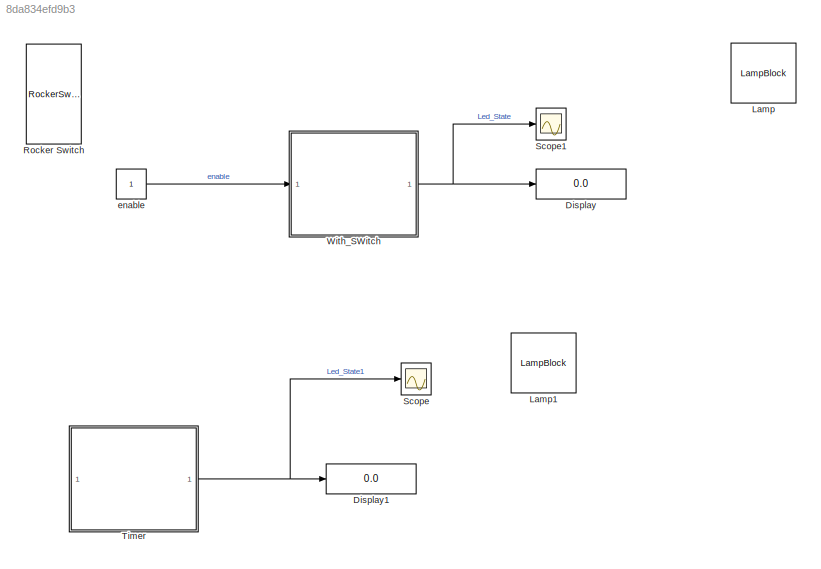
MODEL slx_8da834efd9b3
KIND model
CONFIG AbsTol = auto
CONFIG EnableMultiTasking = off
CONFIG FixedStep = 1
CONFIG MaxStep = auto
CONFIG MinStep = auto
CONFIG RelTol = 1e-3
CONFIG SampleTimeConstraint = Unconstrained
CONFIG SolverName = FixedStepDiscrete
CONFIG StartTime = 0.0
CONFIG StopTime = inf
BLOCK [Display] Display
  Decimation = 1
BLOCK [Display] Display1
  Decimation = 1
BLOCK [LampBlock] Lamp
  LabelPosition = Bottom
BLOCK [LampBlock] Lamp1
  LabelPosition = Bottom
BLOCK [RockerSwitchBlock] Rocker Switch
BLOCK [Scope] Scope
  Floating = off
  NumInputPorts = 1
  ScopeSpecificationString = Simulink.scopes.TimeScopeBlockCfg('CurrentConfiguration', extmgr.ConfigurationSet(extmgr.Configuration('Core','General UI',true),extmgr.Configuration('Core','Source UI',true),extmgr.Configuration('Sources','WiredSimulink',true),extmgr.Configuration('Visuals','Time Domain',true),extmgr.Configuration('Tools','Plot Navigation',true),extmgr.Configuration('Tools','Measurements',true)),'Version','2023b'...<+1ch>
BLOCK [Scope] Scope1
  Floating = off
  NumInputPorts = 1
  ScopeSpecificationString = Simulink.scopes.TimeScopeBlockCfg('CurrentConfiguration', extmgr.ConfigurationSet(extmgr.Configuration('Core','General UI',true),extmgr.Configuration('Core','Source UI',true),extmgr.Configuration('Sources','WiredSimulink',true,'DataLoggingVariableName','ScopeData1'),extmgr.Configuration('Visuals','Time Domain',true,'SerializedDisplays',{struct('MinYLimReal','-0.125','MaxYLimReal','1.125','YLabelRe...<+1356ch>
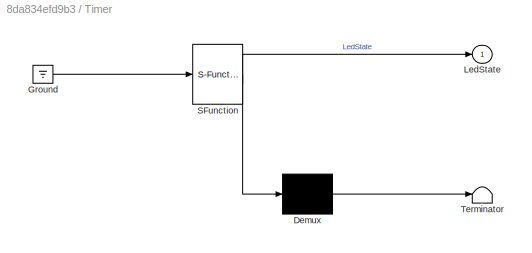
BLOCK [SubSystem] Timer
  ErrorFcn = Stateflow.Translate.translate
  PermitHierarchicalResolution = ExplicitOnly
  SFBlockType = Chart
  TreatAsAtomicUnit = on
BLOCK [Demux] Timer/ Demux 
  Outputs = 1
BLOCK [Ground] Timer/ Ground 
BLOCK [S-Function] Timer/ SFunction 
  EnableBusSupport = on
  FunctionName = sf_sfun
  PortCounts = [1 2]
  SFcnIsStateOwnerBlock = off
  SFunctionDeploymentMode = off
  Tag = Stateflow S-Function 1
BLOCK [Terminator] Timer/ Terminator 
BLOCK [Outport] Timer/LedState
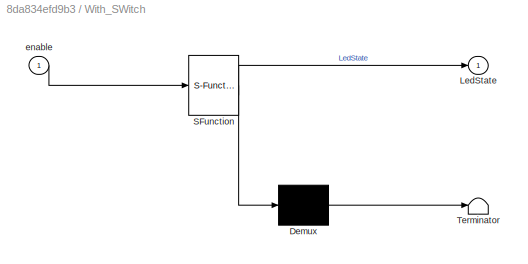
BLOCK [SubSystem] With_SWitch
  ErrorFcn = Stateflow.Translate.translate
  PermitHierarchicalResolution = ExplicitOnly
  SFBlockType = Chart
  TreatAsAtomicUnit = on
BLOCK [Demux] With_SWitch/ Demux 
  Outputs = 1
BLOCK [S-Function] With_SWitch/ SFunction 
  EnableBusSupport = on
  FunctionName = sf_sfun
  PortCounts = [1 2]
  SFcnIsStateOwnerBlock = off
  SFunctionDeploymentMode = off
  Tag = Stateflow S-Function 3
BLOCK [Terminator] With_SWitch/ Terminator 
BLOCK [Outport] With_SWitch/LedState
BLOCK [Inport] With_SWitch/enable
BLOCK [Constant] enable
NET Timer:1 -> Display1:1, Scope:1
NET With_SWitch:1 -> Display:1, Scope1:1
LINE enable:1 -> With_SWitch:1
note: NET lines group one-source signal fan-out (src -> all destinations, sorted); 1:1 wires keep LINE
CHART Timer states=2 transitions=3
  STATE_LABEL 'LedOff\n\nen:\nLedState=0;'
  STATE_LABEL 'LedOn\n\nen:\nLedState=1;'
CHART With_SWitch states=2 transitions=3
  STATE_LABEL 'LedOff\n\nen:\nLedState=0;'
  STATE_LABEL 'LedOn\n\nen:\nLedState=1;'
CHART  states=0 transitions=0
CHART  states=0 transitions=0
